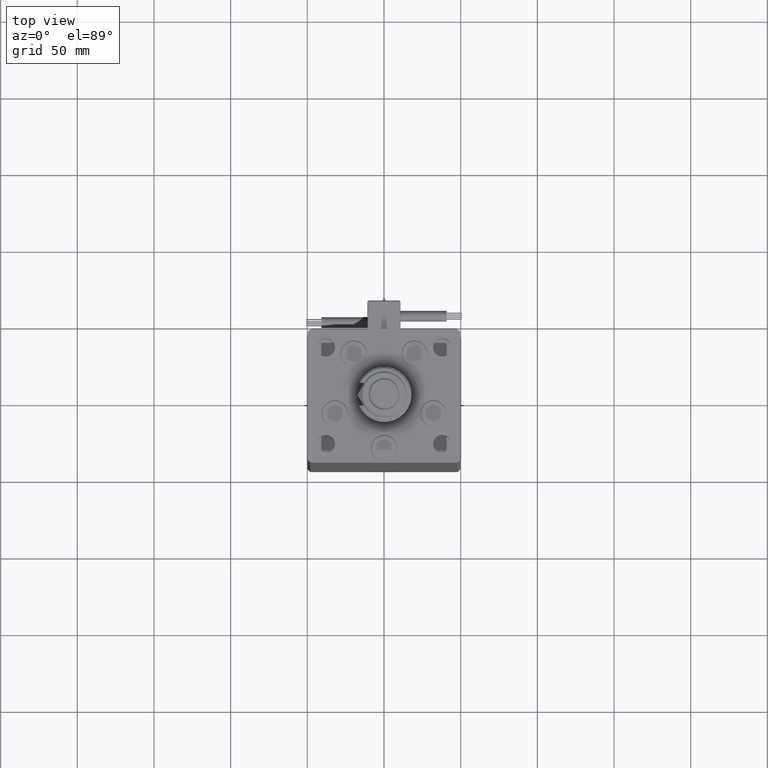
[diagram: clean part render]
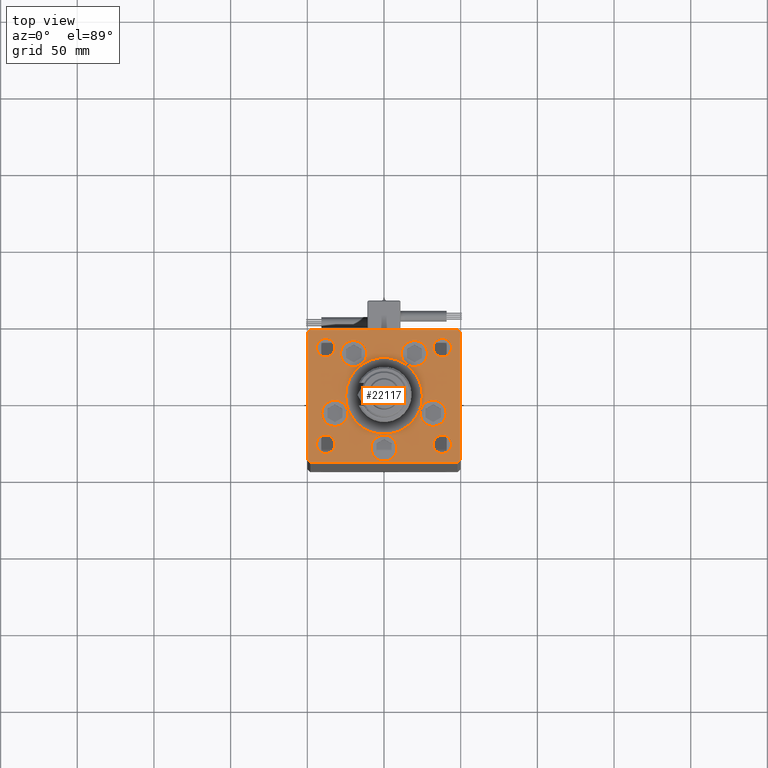
[diagram: same view with one face highlighted and labeled with its STEP entity id]
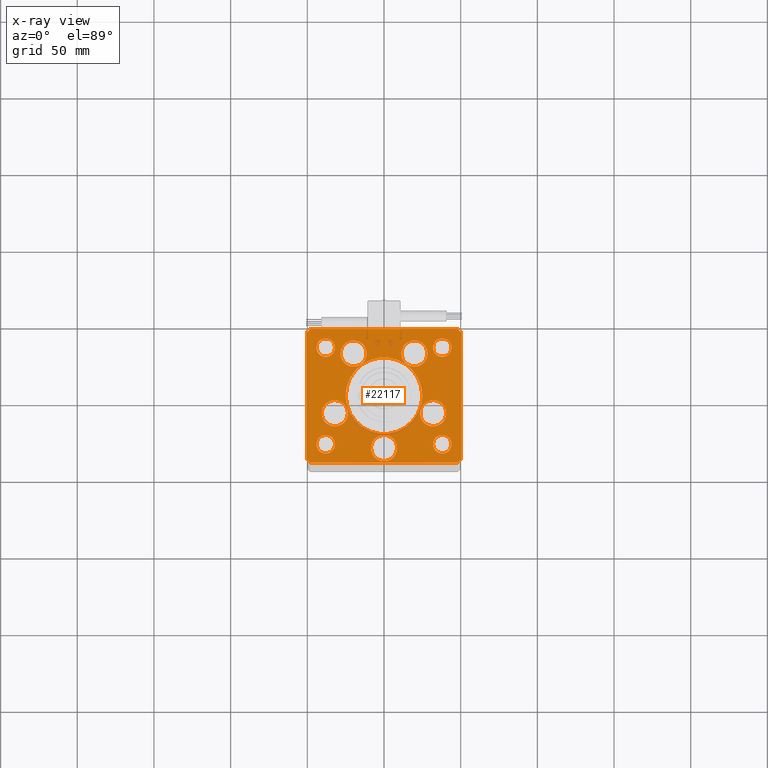
[diagram: x-ray of the same camera — body ghosted, the highlighted face saturated]
A machine part, top view. The second image highlights one B-rep face of the part: STEP entity #22117.
The next image is the same camera in x-ray: the body ghosted, the highlighted face saturated — about 0% of this face is hidden behind the body in this view.
In plain terms, the highlighted planar face has unit normal (0, 0, 1).
Its self-contained STEP definition (entity closure, byte-faithful):
#370 = VECTOR ( 'NONE', #28084, 1000.000000000000114 ) ;
#553 = EDGE_CURVE ( 'NONE', #50338, #40983, #32189, .T. ) ;
#797 = CIRCLE ( 'NONE', #17718, 8.500000000000000000 ) ;
#938 = EDGE_CURVE ( 'NONE', #51429, #21883, #44426, .T. ) ;
#1257 = DIRECTION ( 'NONE',  ( 1.000000000000000000, 0.000000000000000000, 0.000000000000000000 ) ) ;
#1819 = CARTESIAN_POINT ( 'NONE',  ( -38.00000000000000000, 31.50000000000000000, 0.000000000000000000 ) ) ;
#1836 = FACE_BOUND ( 'NONE', #53703, .T. ) ;
#2234 = CARTESIAN_POINT ( 'NONE',  ( -50.00000000000000000, -41.50000000000004263, 0.000000000000000000 ) ) ;
#2286 = AXIS2_PLACEMENT_3D ( 'NONE', #11521, #42318, #1257 ) ;
#2421 = FACE_BOUND ( 'NONE', #40137, .T. ) ;
#2484 = EDGE_CURVE ( 'NONE', #27303, #29905, #51500, .T. ) ;
#2573 = CIRCLE ( 'NONE', #45657, 6.000000000000005329 ) ;
#2606 = EDGE_LOOP ( 'NONE', ( #40333, #33883 ) ) ;
#2710 = CARTESIAN_POINT ( 'NONE',  ( 11.32068048781375147, 27.62499999999998934, 0.000000000000000000 ) ) ;
#2724 = EDGE_CURVE ( 'NONE', #2921, #38383, #41717, .T. ) ;
#2911 = CARTESIAN_POINT ( 'NONE',  ( -48.00000000000000000, 43.49999999999997158, 0.000000000000000000 ) ) ;
#2921 = VERTEX_POINT ( 'NONE', #13332 ) ;
#3136 = CIRCLE ( 'NONE', #52807, 6.000000000000005329 ) ;
#3870 = CARTESIAN_POINT ( 'NONE',  ( -32.00000000000000000, 31.50000000000000000, 0.000000000000000000 ) ) ;
#4115 = CARTESIAN_POINT ( 'NONE',  ( 32.05550741379015989, -11.33333333333332860, 0.000000000000000000 ) ) ;
#4125 = CARTESIAN_POINT ( 'NONE',  ( 0.000000000000000000, -6.938893903907228378E-15, 0.000000000000000000 ) ) ;
#4263 = ORIENTED_EDGE ( 'NONE', *, *, #35704, .T. ) ;
#4436 = LINE ( 'NONE', #35832, #25544 ) ;
#4713 = AXIS2_PLACEMENT_3D ( 'NONE', #22469, #13926, #18349 ) ;
#4894 = ORIENTED_EDGE ( 'NONE', *, *, #26931, .F. ) ;
#4983 = ORIENTED_EDGE ( 'NONE', *, *, #938, .F. ) ;
#4998 = CIRCLE ( 'NONE', #37779, 25.00000000000000000 ) ;
#5892 = ORIENTED_EDGE ( 'NONE', *, *, #33455, .T. ) ;
#6124 = CARTESIAN_POINT ( 'NONE',  ( 38.00000000000000000, 31.50000000000000000, 0.000000000000000000 ) ) ;
#6179 = CARTESIAN_POINT ( 'NONE',  ( 50.00000000000000000, 41.50000000000000711, 0.000000000000000000 ) ) ;
#6310 = CIRCLE ( 'NONE', #57859, 5.999999999999998224 ) ;
#6454 = AXIS2_PLACEMENT_3D ( 'NONE', #6124, #23467, #22897 ) ;
#6536 = FACE_BOUND ( 'NONE', #16308, .T. ) ;
#6739 = DIRECTION ( 'NONE',  ( -0.7071067811865536790, -0.7071067811865414665, 0.000000000000000000 ) ) ;
#6929 = LINE ( 'NONE', #52091, #27707 ) ;
#7366 = EDGE_LOOP ( 'NONE', ( #52437, #12344, #46720, #46475, #31570, #55686, #4263, #16645 ) ) ;
#7690 = DIRECTION ( 'NONE',  ( 1.000000000000000000, 0.000000000000000000, 0.000000000000000000 ) ) ;
#7907 = AXIS2_PLACEMENT_3D ( 'NONE', #44561, #57479, #53079 ) ;
#8133 = EDGE_CURVE ( 'NONE', #31423, #18270, #30022, .T. ) ;
#8679 = AXIS2_PLACEMENT_3D ( 'NONE', #41175, #19763, #28583 ) ;
#10157 = CARTESIAN_POINT ( 'NONE',  ( 48.00000000000000711, -43.49999999999992184, 0.000000000000000000 ) ) ;
#10227 = CIRCLE ( 'NONE', #25248, 25.00000000000000000 ) ;
#10647 = FACE_OUTER_BOUND ( 'NONE', #7366, .T. ) ;
#11225 = FACE_BOUND ( 'NONE', #49049, .T. ) ;
#11275 = CARTESIAN_POINT ( 'NONE',  ( -32.00000000000000000, -31.50000000000000711, 0.000000000000000000 ) ) ;
#11521 = CARTESIAN_POINT ( 'NONE',  ( 0.000000000000000000, 0.000000000000000000, 0.000000000000000000 ) ) ;
#11699 = DIRECTION ( 'NONE',  ( 0.000000000000000000, 0.000000000000000000, 1.000000000000000000 ) ) ;
#12114 = EDGE_LOOP ( 'NONE', ( #4983, #22919 ) ) ;
#12160 = DIRECTION ( 'NONE',  ( 1.000000000000000000, 0.000000000000000000, 0.000000000000000000 ) ) ;
#12344 = ORIENTED_EDGE ( 'NONE', *, *, #19014, .T. ) ;
#12383 = CARTESIAN_POINT ( 'NONE',  ( 28.32068048781375325, 27.62499999999998934, 0.000000000000000000 ) ) ;
#12433 = VERTEX_POINT ( 'NONE', #22616 ) ;
#12457 = DIRECTION ( 'NONE',  ( 0.000000000000000000, 0.000000000000000000, 1.000000000000000000 ) ) ;
#12607 = LINE ( 'NONE', #2911, #22419 ) ;
#12798 = CARTESIAN_POINT ( 'NONE',  ( -8.500000000000000000, -34.00000000000000000, 0.000000000000000000 ) ) ;
#12923 = CARTESIAN_POINT ( 'NONE',  ( 50.00000000000000000, -41.49999999999992895, 0.000000000000000000 ) ) ;
#13101 = EDGE_CURVE ( 'NONE', #40983, #42823, #18062, .T. ) ;
#13122 = CARTESIAN_POINT ( 'NONE',  ( -32.05550741379015989, -11.33333333333332860, 0.000000000000000000 ) ) ;
#13290 = AXIS2_PLACEMENT_3D ( 'NONE', #57572, #35324, #53173 ) ;
#13332 = CARTESIAN_POINT ( 'NONE',  ( -23.55550741379015989, -11.33333333333332860, 0.000000000000000000 ) ) ;
#13926 = DIRECTION ( 'NONE',  ( -0.000000000000000000, -0.000000000000000000, -1.000000000000000000 ) ) ;
#14073 = VERTEX_POINT ( 'NONE', #12798 ) ;
#14163 = DIRECTION ( 'NONE',  ( 0.000000000000000000, 0.000000000000000000, 1.000000000000000000 ) ) ;
#14572 = DIRECTION ( 'NONE',  ( 1.000000000000000000, 0.000000000000000000, 0.000000000000000000 ) ) ;
#14774 = PLANE ( 'NONE',  #2286 ) ;
#15409 = EDGE_CURVE ( 'NONE', #21883, #51429, #30186, .T. ) ;
#15446 = DIRECTION ( 'NONE',  ( 0.7071067811865487940, -0.7071067811865463515, 0.000000000000000000 ) ) ;
#15510 = CARTESIAN_POINT ( 'NONE',  ( -48.00000000000000711, -43.50000000000002842, 0.000000000000000000 ) ) ;
#15848 = VERTEX_POINT ( 'NONE', #24929 ) ;
#16259 = DIRECTION ( 'NONE',  ( 8.360113137237620037E-17, -1.000000000000000000, 0.000000000000000000 ) ) ;
#16308 = EDGE_LOOP ( 'NONE', ( #56050, #4894 ) ) ;
#16463 = AXIS2_PLACEMENT_3D ( 'NONE', #18584, #14163, #32082 ) ;
#16645 = ORIENTED_EDGE ( 'NONE', *, *, #45511, .T. ) ;
#16877 = CARTESIAN_POINT ( 'NONE',  ( 23.55550741379015633, -11.33333333333332682, 0.000000000000000000 ) ) ;
#16952 = DIRECTION ( 'NONE',  ( 1.000000000000000000, 0.000000000000000000, 0.000000000000000000 ) ) ;
#17496 = EDGE_CURVE ( 'NONE', #14073, #38696, #21807, .T. ) ;
#17718 = AXIS2_PLACEMENT_3D ( 'NONE', #27207, #26062, #39518 ) ;
#17916 = DIRECTION ( 'NONE',  ( 1.000000000000000000, 0.000000000000000000, 0.000000000000000000 ) ) ;
#17922 = EDGE_LOOP ( 'NONE', ( #20144, #23137 ) ) ;
#18062 = LINE ( 'NONE', #27450, #57362 ) ;
#18270 = VERTEX_POINT ( 'NONE', #47650 ) ;
#18349 = DIRECTION ( 'NONE',  ( -1.000000000000000000, 0.000000000000000000, 0.000000000000000000 ) ) ;
#18584 = CARTESIAN_POINT ( 'NONE',  ( 0.000000000000000000, -34.00000000000000000, 0.000000000000000000 ) ) ;
#19014 = EDGE_CURVE ( 'NONE', #29905, #50338, #24624, .T. ) ;
#19585 = CARTESIAN_POINT ( 'NONE',  ( 8.500000000000000000, -34.00000000000000000, 0.000000000000000000 ) ) ;
#19763 = DIRECTION ( 'NONE',  ( 0.000000000000000000, 0.000000000000000000, 1.000000000000000000 ) ) ;
#19993 = ORIENTED_EDGE ( 'NONE', *, *, #36101, .F. ) ;
#20144 = ORIENTED_EDGE ( 'NONE', *, *, #28937, .F. ) ;
#20222 = ORIENTED_EDGE ( 'NONE', *, *, #36563, .F. ) ;
#20421 = CARTESIAN_POINT ( 'NONE',  ( 38.00000000000000711, -31.50000000000000711, 0.000000000000000000 ) ) ;
#20982 = CARTESIAN_POINT ( 'NONE',  ( 32.00000000000000000, -31.50000000000000711, 0.000000000000000000 ) ) ;
#21210 = CARTESIAN_POINT ( 'NONE',  ( 38.00000000000000711, -31.50000000000000711, 0.000000000000000000 ) ) ;
#21404 = DIRECTION ( 'NONE',  ( 1.000000000000000000, 0.000000000000000000, 0.000000000000000000 ) ) ;
#21556 = LINE ( 'NONE', #25971, #24980 ) ;
#21648 = CIRCLE ( 'NONE', #28183, 8.500000000000000000 ) ;
#21750 = CARTESIAN_POINT ( 'NONE',  ( 0.000000000000000000, -6.938893903907228378E-15, 0.000000000000000000 ) ) ;
#21795 = DIRECTION ( 'NONE',  ( 0.000000000000000000, 0.000000000000000000, 1.000000000000000000 ) ) ;
#21807 = CIRCLE ( 'NONE', #8679, 8.500000000000000000 ) ;
#21883 = VERTEX_POINT ( 'NONE', #16877 ) ;
#22117 = ADVANCED_FACE ( 'NONE', ( #28581, #6536, #56088, #51396, #23888, #1836, #11225, #50821, #2421, #10647, #42035 ), #14774, .T. ) ;
#22144 = DIRECTION ( 'NONE',  ( 1.000000000000000000, 0.000000000000000000, 0.000000000000000000 ) ) ;
#22419 = VECTOR ( 'NONE', #6739, 1000.000000000000000 ) ;
#22431 = CARTESIAN_POINT ( 'NONE',  ( -28.32068048781375325, 27.62499999999998934, 0.000000000000000000 ) ) ;
#22463 = EDGE_CURVE ( 'NONE', #49948, #49107, #31362, .T. ) ;
#22469 = CARTESIAN_POINT ( 'NONE',  ( -38.00000000000000000, 31.50000000000000000, 0.000000000000000000 ) ) ;
#22616 = CARTESIAN_POINT ( 'NONE',  ( 25.00000000000000000, -3.877276906038844941E-15, 0.000000000000000000 ) ) ;
#22897 = DIRECTION ( 'NONE',  ( 1.000000000000000000, 0.000000000000000000, 0.000000000000000000 ) ) ;
#22919 = ORIENTED_EDGE ( 'NONE', *, *, #15409, .F. ) ;
#23137 = ORIENTED_EDGE ( 'NONE', *, *, #17496, .F. ) ;
#23398 = CARTESIAN_POINT ( 'NONE',  ( -38.00000000000000711, -31.50000000000000711, 0.000000000000000000 ) ) ;
#23467 = DIRECTION ( 'NONE',  ( 0.000000000000000000, 0.000000000000000000, 1.000000000000000000 ) ) ;
#23588 = DIRECTION ( 'NONE',  ( -1.000000000000000000, 0.000000000000000000, 0.000000000000000000 ) ) ;
#23888 = FACE_BOUND ( 'NONE', #17922, .T. ) ;
#23971 = VERTEX_POINT ( 'NONE', #28916 ) ;
#24014 = CIRCLE ( 'NONE', #56771, 8.500000000000000000 ) ;
#24076 = VERTEX_POINT ( 'NONE', #22431 ) ;
#24624 = LINE ( 'NONE', #15510, #30306 ) ;
#24626 = CARTESIAN_POINT ( 'NONE',  ( 40.55550741379015989, -11.33333333333332860, 0.000000000000000000 ) ) ;
#24929 = CARTESIAN_POINT ( 'NONE',  ( 32.00000000000000000, 31.50000000000000000, 0.000000000000000000 ) ) ;
#24980 = VECTOR ( 'NONE', #35913, 1000.000000000000000 ) ;
#25159 = ORIENTED_EDGE ( 'NONE', *, *, #22463, .F. ) ;
#25248 = AXIS2_PLACEMENT_3D ( 'NONE', #4125, #53913, #17916 ) ;
#25544 = VECTOR ( 'NONE', #16259, 1000.000000000000000 ) ;
#25929 = ORIENTED_EDGE ( 'NONE', *, *, #52220, .F. ) ;
#25971 = CARTESIAN_POINT ( 'NONE',  ( 47.99999999999999289, 43.50000000000000000, 0.000000000000000000 ) ) ;
#26026 = DIRECTION ( 'NONE',  ( -0.7071067811865512365, 0.7071067811865439090, 0.000000000000000000 ) ) ;
#26062 = DIRECTION ( 'NONE',  ( 0.000000000000000000, 0.000000000000000000, 1.000000000000000000 ) ) ;
#26764 = CARTESIAN_POINT ( 'NONE',  ( -48.00000000000000000, 43.49999999999997158, 0.000000000000000000 ) ) ;
#26803 = VERTEX_POINT ( 'NONE', #40363 ) ;
#26890 = VERTEX_POINT ( 'NONE', #11275 ) ;
#26918 = CARTESIAN_POINT ( 'NONE',  ( 47.99999999999999289, 43.50000000000000000, 0.000000000000000000 ) ) ;
#26931 = EDGE_CURVE ( 'NONE', #24076, #52515, #24014, .T. ) ;
#26965 = EDGE_CURVE ( 'NONE', #39270, #34463, #21556, .T. ) ;
#27207 = CARTESIAN_POINT ( 'NONE',  ( 19.82068048781374969, 27.62499999999998934, 0.000000000000000000 ) ) ;
#27303 = VERTEX_POINT ( 'NONE', #55347 ) ;
#27450 = CARTESIAN_POINT ( 'NONE',  ( 50.00000000000000000, -41.49999999999992895, 0.000000000000000000 ) ) ;
#27707 = VECTOR ( 'NONE', #26026, 999.9999999999998863 ) ;
#27948 = EDGE_LOOP ( 'NONE', ( #36451, #34896 ) ) ;
#28084 = DIRECTION ( 'NONE',  ( 0.7071067811865474617, 0.7071067811865474617, 0.000000000000000000 ) ) ;
#28183 = AXIS2_PLACEMENT_3D ( 'NONE', #13122, #34860, #16952 ) ;
#28415 = EDGE_CURVE ( 'NONE', #42823, #39270, #6929, .T. ) ;
#28581 = FACE_BOUND ( 'NONE', #27948, .T. ) ;
#28583 = DIRECTION ( 'NONE',  ( 1.000000000000000000, 0.000000000000000000, 0.000000000000000000 ) ) ;
#28916 = CARTESIAN_POINT ( 'NONE',  ( 44.00000000000001421, -31.50000000000000711, 0.000000000000000000 ) ) ;
#28937 = EDGE_CURVE ( 'NONE', #38696, #14073, #56722, .T. ) ;
#29327 = ORIENTED_EDGE ( 'NONE', *, *, #33368, .F. ) ;
#29905 = VERTEX_POINT ( 'NONE', #46958 ) ;
#30022 = CIRCLE ( 'NONE', #4713, 5.999999999999998224 ) ;
#30186 = CIRCLE ( 'NONE', #13290, 8.500000000000000000 ) ;
#30306 = VECTOR ( 'NONE', #37524, 1000.000000000000000 ) ;
#30603 = DIRECTION ( 'NONE',  ( -1.000000000000000000, 0.000000000000000000, 0.000000000000000000 ) ) ;
#31065 = VERTEX_POINT ( 'NONE', #20982 ) ;
#31124 = AXIS2_PLACEMENT_3D ( 'NONE', #20421, #56759, #38019 ) ;
#31362 = CIRCLE ( 'NONE', #7907, 8.500000000000000000 ) ;
#31423 = VERTEX_POINT ( 'NONE', #3870 ) ;
#31570 = ORIENTED_EDGE ( 'NONE', *, *, #28415, .T. ) ;
#32082 = DIRECTION ( 'NONE',  ( 1.000000000000000000, 0.000000000000000000, 0.000000000000000000 ) ) ;
#32125 = EDGE_CURVE ( 'NONE', #15848, #26803, #40027, .T. ) ;
#32189 = LINE ( 'NONE', #10157, #370 ) ;
#32346 = EDGE_LOOP ( 'NONE', ( #20222, #37870 ) ) ;
#33368 = EDGE_CURVE ( 'NONE', #42493, #26890, #2573, .T. ) ;
#33455 = EDGE_CURVE ( 'NONE', #18270, #31423, #6310, .T. ) ;
#33480 = ORIENTED_EDGE ( 'NONE', *, *, #8133, .T. ) ;
#33533 = DIRECTION ( 'NONE',  ( -0.000000000000000000, -0.000000000000000000, -1.000000000000000000 ) ) ;
#33574 = ORIENTED_EDGE ( 'NONE', *, *, #2724, .F. ) ;
#33883 = ORIENTED_EDGE ( 'NONE', *, *, #43535, .T. ) ;
#34463 = VERTEX_POINT ( 'NONE', #26764 ) ;
#34860 = DIRECTION ( 'NONE',  ( 0.000000000000000000, 0.000000000000000000, 1.000000000000000000 ) ) ;
#34896 = ORIENTED_EDGE ( 'NONE', *, *, #51225, .F. ) ;
#35324 = DIRECTION ( 'NONE',  ( 0.000000000000000000, 0.000000000000000000, 1.000000000000000000 ) ) ;
#35704 = EDGE_CURVE ( 'NONE', #34463, #36591, #12607, .T. ) ;
#35832 = CARTESIAN_POINT ( 'NONE',  ( -50.00000000000000711, 41.49999999999999289, 0.000000000000000000 ) ) ;
#35875 = VERTEX_POINT ( 'NONE', #48951 ) ;
#35913 = DIRECTION ( 'NONE',  ( -1.000000000000000000, -2.891205793294678326E-16, 0.000000000000000000 ) ) ;
#36101 = EDGE_CURVE ( 'NONE', #49107, #49948, #797, .T. ) ;
#36202 = CARTESIAN_POINT ( 'NONE',  ( -19.82068048781374969, 27.62499999999998934, 0.000000000000000000 ) ) ;
#36451 = ORIENTED_EDGE ( 'NONE', *, *, #37267, .F. ) ;
#36534 = DIRECTION ( 'NONE',  ( 0.000000000000000000, 1.000000000000000000, 0.000000000000000000 ) ) ;
#36563 = EDGE_CURVE ( 'NONE', #26803, #15848, #49582, .T. ) ;
#36591 = VERTEX_POINT ( 'NONE', #54240 ) ;
#37091 = CIRCLE ( 'NONE', #48274, 8.500000000000000000 ) ;
#37267 = EDGE_CURVE ( 'NONE', #35875, #12433, #10227, .T. ) ;
#37524 = DIRECTION ( 'NONE',  ( 1.000000000000000000, 1.156482317317871331E-15, 0.000000000000000000 ) ) ;
#37779 = AXIS2_PLACEMENT_3D ( 'NONE', #21750, #39613, #44288 ) ;
#37870 = ORIENTED_EDGE ( 'NONE', *, *, #32125, .F. ) ;
#38019 = DIRECTION ( 'NONE',  ( -1.000000000000000000, 0.000000000000000000, 0.000000000000000000 ) ) ;
#38383 = VERTEX_POINT ( 'NONE', #50217 ) ;
#38696 = VERTEX_POINT ( 'NONE', #19585 ) ;
#39081 = DIRECTION ( 'NONE',  ( -0.000000000000000000, -0.000000000000000000, -1.000000000000000000 ) ) ;
#39270 = VERTEX_POINT ( 'NONE', #26918 ) ;
#39518 = DIRECTION ( 'NONE',  ( 1.000000000000000000, 0.000000000000000000, 0.000000000000000000 ) ) ;
#39613 = DIRECTION ( 'NONE',  ( 0.000000000000000000, 0.000000000000000000, 1.000000000000000000 ) ) ;
#39903 = DIRECTION ( 'NONE',  ( 1.000000000000000000, 0.000000000000000000, 0.000000000000000000 ) ) ;
#40027 = CIRCLE ( 'NONE', #51223, 5.999999999999998224 ) ;
#40137 = EDGE_LOOP ( 'NONE', ( #25929, #29327 ) ) ;
#40162 = EDGE_CURVE ( 'NONE', #38383, #2921, #21648, .T. ) ;
#40333 = ORIENTED_EDGE ( 'NONE', *, *, #44602, .T. ) ;
#40363 = CARTESIAN_POINT ( 'NONE',  ( 44.00000000000000000, 31.50000000000000000, 0.000000000000000000 ) ) ;
#40580 = DIRECTION ( 'NONE',  ( 0.000000000000000000, 0.000000000000000000, 1.000000000000000000 ) ) ;
#40983 = VERTEX_POINT ( 'NONE', #12923 ) ;
#41175 = CARTESIAN_POINT ( 'NONE',  ( 0.000000000000000000, -34.00000000000000000, 0.000000000000000000 ) ) ;
#41717 = CIRCLE ( 'NONE', #46383, 8.500000000000000000 ) ;
#42035 = FACE_BOUND ( 'NONE', #2606, .T. ) ;
#42117 = DIRECTION ( 'NONE',  ( 0.000000000000000000, 0.000000000000000000, 1.000000000000000000 ) ) ;
#42318 = DIRECTION ( 'NONE',  ( -0.000000000000000000, 0.000000000000000000, 1.000000000000000000 ) ) ;
#42493 = VERTEX_POINT ( 'NONE', #54941 ) ;
#42823 = VERTEX_POINT ( 'NONE', #6179 ) ;
#43323 = CARTESIAN_POINT ( 'NONE',  ( -11.32068048781375147, 27.62499999999998934, 0.000000000000000000 ) ) ;
#43535 = EDGE_CURVE ( 'NONE', #31065, #23971, #45138, .T. ) ;
#44288 = DIRECTION ( 'NONE',  ( 1.000000000000000000, 0.000000000000000000, 0.000000000000000000 ) ) ;
#44334 = CARTESIAN_POINT ( 'NONE',  ( -32.05550741379015989, -11.33333333333332860, 0.000000000000000000 ) ) ;
#44426 = CIRCLE ( 'NONE', #52842, 8.500000000000000000 ) ;
#44561 = CARTESIAN_POINT ( 'NONE',  ( 19.82068048781374969, 27.62499999999998934, 0.000000000000000000 ) ) ;
#44602 = EDGE_CURVE ( 'NONE', #23971, #31065, #53612, .T. ) ;
#45138 = CIRCLE ( 'NONE', #31124, 6.000000000000005329 ) ;
#45511 = EDGE_CURVE ( 'NONE', #36591, #27303, #4436, .T. ) ;
#45657 = AXIS2_PLACEMENT_3D ( 'NONE', #23398, #42117, #14572 ) ;
#46383 = AXIS2_PLACEMENT_3D ( 'NONE', #44334, #21795, #7690 ) ;
#46475 = ORIENTED_EDGE ( 'NONE', *, *, #13101, .T. ) ;
#46720 = ORIENTED_EDGE ( 'NONE', *, *, #553, .T. ) ;
#46958 = CARTESIAN_POINT ( 'NONE',  ( -48.00000000000000711, -43.50000000000002842, 0.000000000000000000 ) ) ;
#47650 = CARTESIAN_POINT ( 'NONE',  ( -44.00000000000000000, 31.50000000000000000, 0.000000000000000000 ) ) ;
#48274 = AXIS2_PLACEMENT_3D ( 'NONE', #56743, #12457, #12160 ) ;
#48951 = CARTESIAN_POINT ( 'NONE',  ( -25.00000000000000000, -6.938893903907228378E-15, 0.000000000000000000 ) ) ;
#49049 = EDGE_LOOP ( 'NONE', ( #33480, #5892 ) ) ;
#49107 = VERTEX_POINT ( 'NONE', #12383 ) ;
#49162 = VECTOR ( 'NONE', #15446, 1000.000000000000000 ) ;
#49582 = CIRCLE ( 'NONE', #6454, 5.999999999999998224 ) ;
#49948 = VERTEX_POINT ( 'NONE', #2710 ) ;
#50217 = CARTESIAN_POINT ( 'NONE',  ( -40.55550741379015989, -11.33333333333332682, 0.000000000000000000 ) ) ;
#50338 = VERTEX_POINT ( 'NONE', #56315 ) ;
#50478 = EDGE_LOOP ( 'NONE', ( #19993, #25159 ) ) ;
#50821 = FACE_BOUND ( 'NONE', #32346, .T. ) ;
#51223 = AXIS2_PLACEMENT_3D ( 'NONE', #57405, #52714, #53580 ) ;
#51225 = EDGE_CURVE ( 'NONE', #12433, #35875, #4998, .T. ) ;
#51396 = FACE_BOUND ( 'NONE', #12114, .T. ) ;
#51429 = VERTEX_POINT ( 'NONE', #24626 ) ;
#51500 = LINE ( 'NONE', #2234, #49162 ) ;
#51706 = AXIS2_PLACEMENT_3D ( 'NONE', #21210, #39081, #30603 ) ;
#52091 = CARTESIAN_POINT ( 'NONE',  ( 50.00000000000000000, 41.50000000000000711, 0.000000000000000000 ) ) ;
#52220 = EDGE_CURVE ( 'NONE', #26890, #42493, #3136, .T. ) ;
#52437 = ORIENTED_EDGE ( 'NONE', *, *, #2484, .T. ) ;
#52451 = CARTESIAN_POINT ( 'NONE',  ( -38.00000000000000711, -31.50000000000000711, 0.000000000000000000 ) ) ;
#52511 = ORIENTED_EDGE ( 'NONE', *, *, #40162, .F. ) ;
#52515 = VERTEX_POINT ( 'NONE', #43323 ) ;
#52714 = DIRECTION ( 'NONE',  ( 0.000000000000000000, 0.000000000000000000, 1.000000000000000000 ) ) ;
#52807 = AXIS2_PLACEMENT_3D ( 'NONE', #52451, #11699, #21404 ) ;
#52842 = AXIS2_PLACEMENT_3D ( 'NONE', #4115, #53093, #39903 ) ;
#53079 = DIRECTION ( 'NONE',  ( 1.000000000000000000, 0.000000000000000000, 0.000000000000000000 ) ) ;
#53093 = DIRECTION ( 'NONE',  ( 0.000000000000000000, 0.000000000000000000, 1.000000000000000000 ) ) ;
#53173 = DIRECTION ( 'NONE',  ( 1.000000000000000000, 0.000000000000000000, 0.000000000000000000 ) ) ;
#53580 = DIRECTION ( 'NONE',  ( 1.000000000000000000, 0.000000000000000000, 0.000000000000000000 ) ) ;
#53612 = CIRCLE ( 'NONE', #51706, 6.000000000000005329 ) ;
#53703 = EDGE_LOOP ( 'NONE', ( #33574, #52511 ) ) ;
#53913 = DIRECTION ( 'NONE',  ( 0.000000000000000000, 0.000000000000000000, 1.000000000000000000 ) ) ;
#54240 = CARTESIAN_POINT ( 'NONE',  ( -50.00000000000000711, 41.49999999999999289, 0.000000000000000000 ) ) ;
#54941 = CARTESIAN_POINT ( 'NONE',  ( -44.00000000000001421, -31.50000000000000711, 0.000000000000000000 ) ) ;
#55347 = CARTESIAN_POINT ( 'NONE',  ( -50.00000000000000000, -41.50000000000004263, 0.000000000000000000 ) ) ;
#55686 = ORIENTED_EDGE ( 'NONE', *, *, #26965, .T. ) ;
#56050 = ORIENTED_EDGE ( 'NONE', *, *, #56867, .F. ) ;
#56088 = FACE_BOUND ( 'NONE', #50478, .T. ) ;
#56315 = CARTESIAN_POINT ( 'NONE',  ( 48.00000000000000711, -43.49999999999992184, 0.000000000000000000 ) ) ;
#56722 = CIRCLE ( 'NONE', #16463, 8.500000000000000000 ) ;
#56743 = CARTESIAN_POINT ( 'NONE',  ( -19.82068048781374969, 27.62499999999998934, 0.000000000000000000 ) ) ;
#56759 = DIRECTION ( 'NONE',  ( -0.000000000000000000, -0.000000000000000000, -1.000000000000000000 ) ) ;
#56771 = AXIS2_PLACEMENT_3D ( 'NONE', #36202, #40580, #22144 ) ;
#56867 = EDGE_CURVE ( 'NONE', #52515, #24076, #37091, .T. ) ;
#57362 = VECTOR ( 'NONE', #36534, 1000.000000000000000 ) ;
#57405 = CARTESIAN_POINT ( 'NONE',  ( 38.00000000000000000, 31.50000000000000000, 0.000000000000000000 ) ) ;
#57479 = DIRECTION ( 'NONE',  ( 0.000000000000000000, 0.000000000000000000, 1.000000000000000000 ) ) ;
#57572 = CARTESIAN_POINT ( 'NONE',  ( 32.05550741379015989, -11.33333333333332860, 0.000000000000000000 ) ) ;
#57859 = AXIS2_PLACEMENT_3D ( 'NONE', #1819, #33533, #23588 ) ;